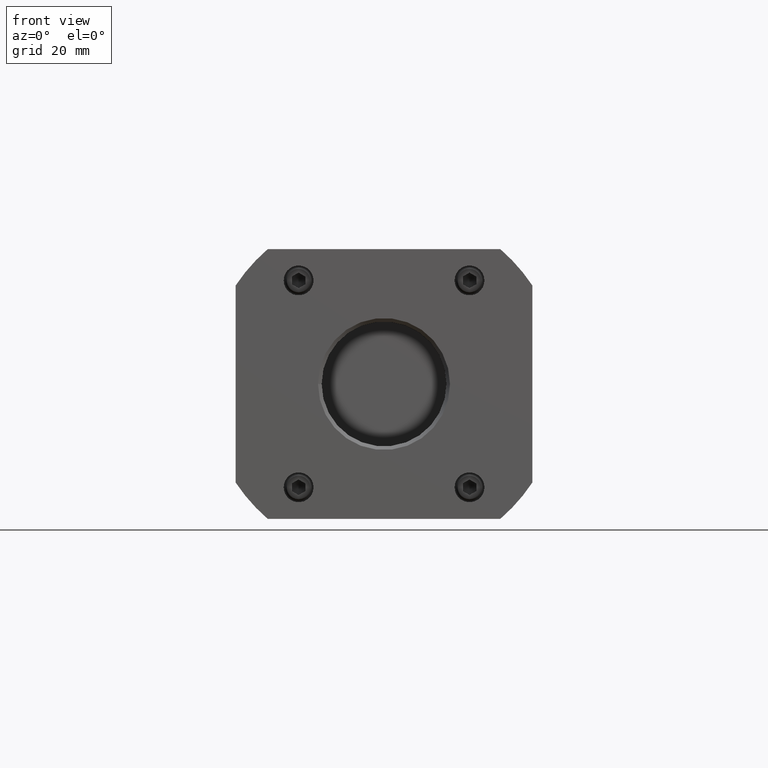
[diagram: clean part render]
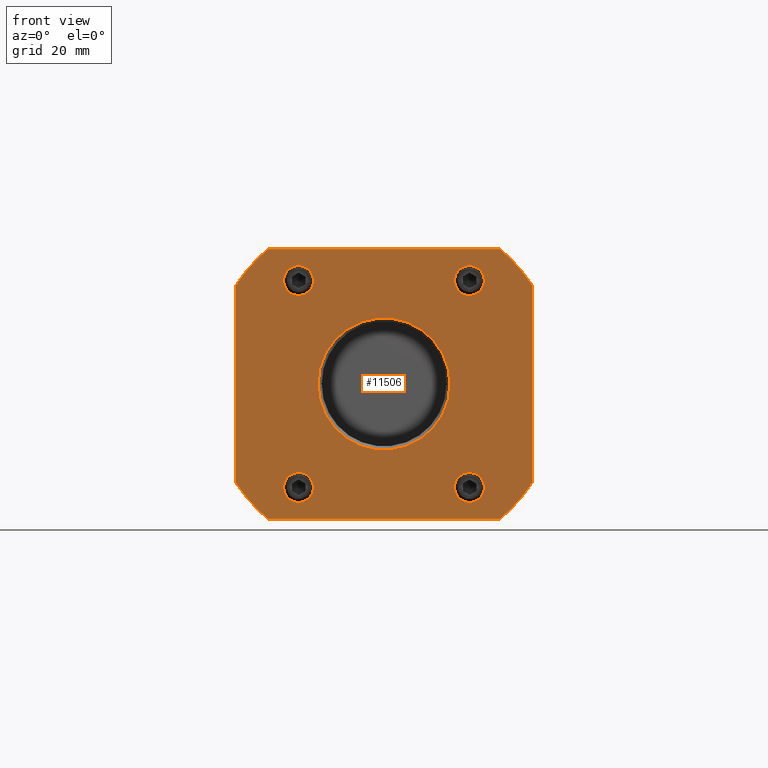
[diagram: same view with one face highlighted and labeled with its STEP entity id]
A machine part, front view. The second image highlights one B-rep face of the part: STEP entity #11506.
In plain terms, the highlighted planar face has unit normal (0, 1, 0).
Its self-contained STEP definition (entity closure, byte-faithful):
#11360=CARTESIAN_POINT('',(-0.917187500000000,-4.582272E-016,-1.860957E-016));
#11361=VERTEX_POINT('',#11360);
#11362=CARTESIAN_POINT('',(0.0,0.0,0.0));
#11363=DIRECTION('',(0.0,-1.0,0.0));
#11364=DIRECTION('',(1.0,0.0,0.0));
#11365=AXIS2_PLACEMENT_3D('',#11362,#11363,#11364);
#11366=CIRCLE('',#11365,0.917187500000000);
#11367=EDGE_CURVE('',#11361,#11361,#11366,.T.);
#11384=CARTESIAN_POINT('',(4.370957E-017,4.247642E-032,-7.197745E-017));
#11385=DIRECTION('',(0.0,1.0,0.0));
#11386=DIRECTION('',(0.0,0.0,-1.0));
#11387=AXIS2_PLACEMENT_3D('',#11384,#11385,#11386);
#11388=PLANE('',#11387);
#11389=CARTESIAN_POINT('',(1.615549442140352,2.694841E-016,1.875000000000000));
#11390=VERTEX_POINT('',#11389);
#11391=CARTESIAN_POINT('',(2.062500000000000,6.381291E-016,1.368107726021602));
#11392=VERTEX_POINT('',#11391);
#11393=CARTESIAN_POINT('',(0.0,0.0,0.0));
#11394=DIRECTION('',(0.0,1.0,0.0));
#11395=DIRECTION('',(1.0,0.0,0.0));
#11396=AXIS2_PLACEMENT_3D('',#11393,#11394,#11395);
#11397=CIRCLE('',#11396,2.475000000000000);
#11398=EDGE_CURVE('',#11390,#11392,#11397,.T.);
#11399=ORIENTED_EDGE('',*,*,#11398,.F.);
#11400=CARTESIAN_POINT('',(-1.615549442140351,-1.344774E-015,1.875000000000000));
#11401=VERTEX_POINT('',#11400);
#11402=CARTESIAN_POINT('',(-1.615549442140351,-1.344774E-015,1.875000000000000));
#11403=DIRECTION('',(1.0,0.0,0.0));
#11404=VECTOR('',#11403,3.231098884280703);
#11405=LINE('',#11402,#11404);
#11406=EDGE_CURVE('',#11401,#11390,#11405,.T.);
#11407=ORIENTED_EDGE('',*,*,#11406,.F.);
#11408=CARTESIAN_POINT('',(-2.062500000000000,-1.422722E-015,1.368107726021602));
#11409=VERTEX_POINT('',#11408);
#11410=CARTESIAN_POINT('',(0.0,0.0,0.0));
#11411=DIRECTION('',(0.0,1.0,0.0));
#11412=DIRECTION('',(1.0,0.0,0.0));
#11413=AXIS2_PLACEMENT_3D('',#11410,#11411,#11412);
#11414=CIRCLE('',#11413,2.475000000000000);
#11415=EDGE_CURVE('',#11409,#11401,#11414,.T.);
#11416=ORIENTED_EDGE('',*,*,#11415,.F.);
#11417=CARTESIAN_POINT('',(-2.062500000000000,-6.381291E-016,-1.368107726021602));
#11418=VERTEX_POINT('',#11417);
#11419=CARTESIAN_POINT('',(-2.062500000000000,-6.381291E-016,-1.368107726021602));
#11420=DIRECTION('',(0.0,0.0,1.0));
#11421=VECTOR('',#11420,2.736215452043204);
#11422=LINE('',#11419,#11421);
#11423=EDGE_CURVE('',#11418,#11409,#11422,.T.);
#11424=ORIENTED_EDGE('',*,*,#11423,.F.);
#11425=CARTESIAN_POINT('',(-1.615549442140352,-2.694841E-016,-1.875000000000000));
#11426=VERTEX_POINT('',#11425);
#11427=CARTESIAN_POINT('',(0.0,0.0,0.0));
#11428=DIRECTION('',(0.0,1.0,0.0));
#11429=DIRECTION('',(1.0,0.0,0.0));
#11430=AXIS2_PLACEMENT_3D('',#11427,#11428,#11429);
#11431=CIRCLE('',#11430,2.475000000000000);
#11432=EDGE_CURVE('',#11426,#11418,#11431,.T.);
#11433=ORIENTED_EDGE('',*,*,#11432,.F.);
#11434=CARTESIAN_POINT('',(1.615549442140351,1.344774E-015,-1.875000000000001));
#11435=VERTEX_POINT('',#11434);
#11436=CARTESIAN_POINT('',(1.615549442140351,1.344774E-015,-1.875000000000001));
#11437=DIRECTION('',(-1.0,0.0,0.0));
#11438=VECTOR('',#11437,3.231098884280703);
#11439=LINE('',#11436,#11438);
#11440=EDGE_CURVE('',#11435,#11426,#11439,.T.);
#11441=ORIENTED_EDGE('',*,*,#11440,.F.);
#11442=CARTESIAN_POINT('',(2.062500000000000,1.422722E-015,-1.368107726021603));
#11443=VERTEX_POINT('',#11442);
#11444=CARTESIAN_POINT('',(0.0,0.0,0.0));
#11445=DIRECTION('',(0.0,1.0,0.0));
#11446=DIRECTION('',(1.0,0.0,0.0));
#11447=AXIS2_PLACEMENT_3D('',#11444,#11445,#11446);
#11448=CIRCLE('',#11447,2.475000000000000);
#11449=EDGE_CURVE('',#11443,#11435,#11448,.T.);
#11450=ORIENTED_EDGE('',*,*,#11449,.F.);
#11451=CARTESIAN_POINT('',(2.062500000000000,6.381291E-016,1.368107726021602));
#11452=DIRECTION('',(0.0,0.0,-1.0));
#11453=VECTOR('',#11452,2.736215452043204);
#11454=LINE('',#11451,#11453);
#11455=EDGE_CURVE('',#11392,#11443,#11454,.T.);
#11456=ORIENTED_EDGE('',*,*,#11455,.F.);
#11457=EDGE_LOOP('',(#11399,#11407,#11416,#11424,#11433,#11441,#11450,#11456));
#11458=FACE_OUTER_BOUND('',#11457,.T.);
#11459=CARTESIAN_POINT('',(-1.395000000000000,-1.109137E-015,1.437500000000000));
#11460=VERTEX_POINT('',#11459);
#11461=CARTESIAN_POINT('',(-1.187500000000000,-1.005470E-015,1.437500000000000));
#11462=DIRECTION('',(0.0,1.0,0.0));
#11463=DIRECTION('',(-1.0,0.0,0.0));
#11464=AXIS2_PLACEMENT_3D('',#11461,#11462,#11463);
#11465=CIRCLE('',#11464,0.207500000000000);
#11466=EDGE_CURVE('',#11460,#11460,#11465,.T.);
#11467=ORIENTED_EDGE('',*,*,#11466,.T.);
#11468=EDGE_LOOP('',(#11467));
#11469=FACE_BOUND('',#11468,.T.);
#11470=CARTESIAN_POINT('',(0.980000000000000,7.741385E-017,1.437500000000000));
#11471=VERTEX_POINT('',#11470);
#11472=CARTESIAN_POINT('',(1.187500000000000,1.810809E-016,1.437500000000000));
#11473=DIRECTION('',(0.0,1.0,0.0));
#11474=DIRECTION('',(-1.0,0.0,0.0));
#11475=AXIS2_PLACEMENT_3D('',#11472,#11473,#11474);
#11476=CIRCLE('',#11475,0.207500000000000);
#11477=EDGE_CURVE('',#11471,#11471,#11476,.T.);
#11478=ORIENTED_EDGE('',*,*,#11477,.T.);
#11479=EDGE_LOOP('',(#11478));
#11480=FACE_BOUND('',#11479,.T.);
#11481=CARTESIAN_POINT('',(-1.395000000000000,-2.847480E-016,-1.437500000000000));
#11482=VERTEX_POINT('',#11481);
#11483=CARTESIAN_POINT('',(-1.187500000000000,-1.810809E-016,-1.437500000000000));
#11484=DIRECTION('',(0.0,1.0,0.0));
#11485=DIRECTION('',(-1.0,0.0,0.0));
#11486=AXIS2_PLACEMENT_3D('',#11483,#11484,#11485);
#11487=CIRCLE('',#11486,0.207500000000000);
#11488=EDGE_CURVE('',#11482,#11482,#11487,.T.);
#11489=ORIENTED_EDGE('',*,*,#11488,.T.);
#11490=EDGE_LOOP('',(#11489));
#11491=FACE_BOUND('',#11490,.T.);
#11492=CARTESIAN_POINT('',(0.980000000000000,9.018029E-016,-1.437500000000000));
#11493=VERTEX_POINT('',#11492);
#11494=CARTESIAN_POINT('',(1.187500000000000,1.005470E-015,-1.437500000000000));
#11495=DIRECTION('',(0.0,1.0,0.0));
#11496=DIRECTION('',(-1.0,0.0,0.0));
#11497=AXIS2_PLACEMENT_3D('',#11494,#11495,#11496);
#11498=CIRCLE('',#11497,0.207500000000000);
#11499=EDGE_CURVE('',#11493,#11493,#11498,.T.);
#11500=ORIENTED_EDGE('',*,*,#11499,.T.);
#11501=EDGE_LOOP('',(#11500));
#11502=FACE_BOUND('',#11501,.T.);
#11503=ORIENTED_EDGE('',*,*,#11367,.F.);
#11504=EDGE_LOOP('',(#11503));
#11505=FACE_BOUND('',#11504,.T.);
#11506=ADVANCED_FACE('',(#11458,#11469,#11480,#11491,#11502,#11505),#11388,.F.);